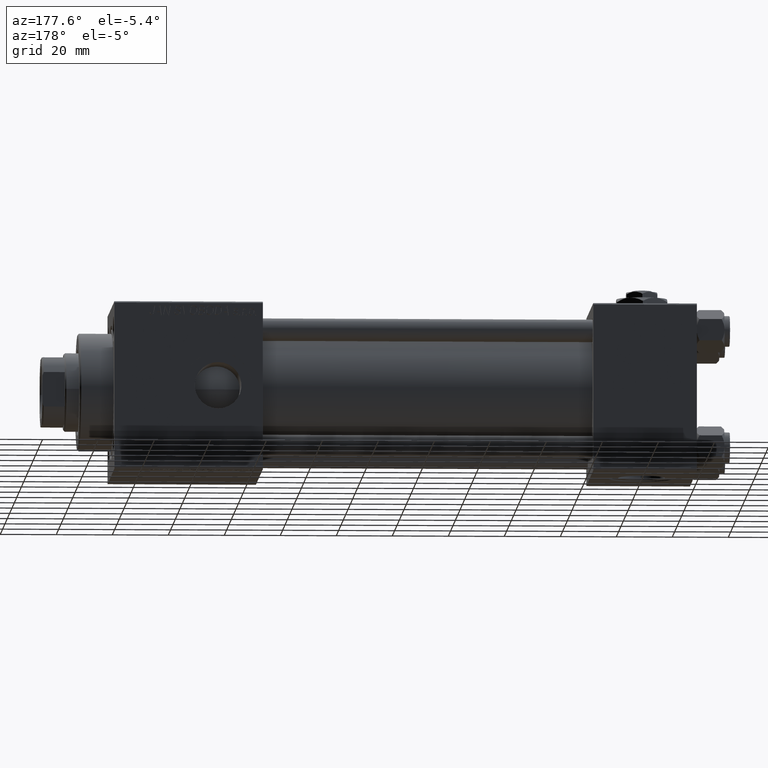
[diagram: clean part render]
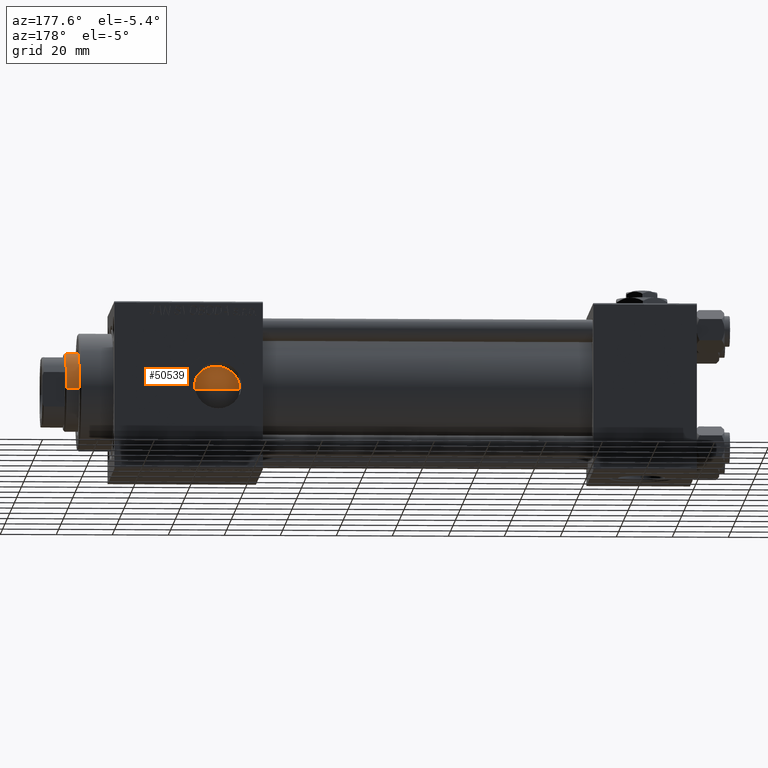
[diagram: same view with one face highlighted and labeled with its STEP entity id]
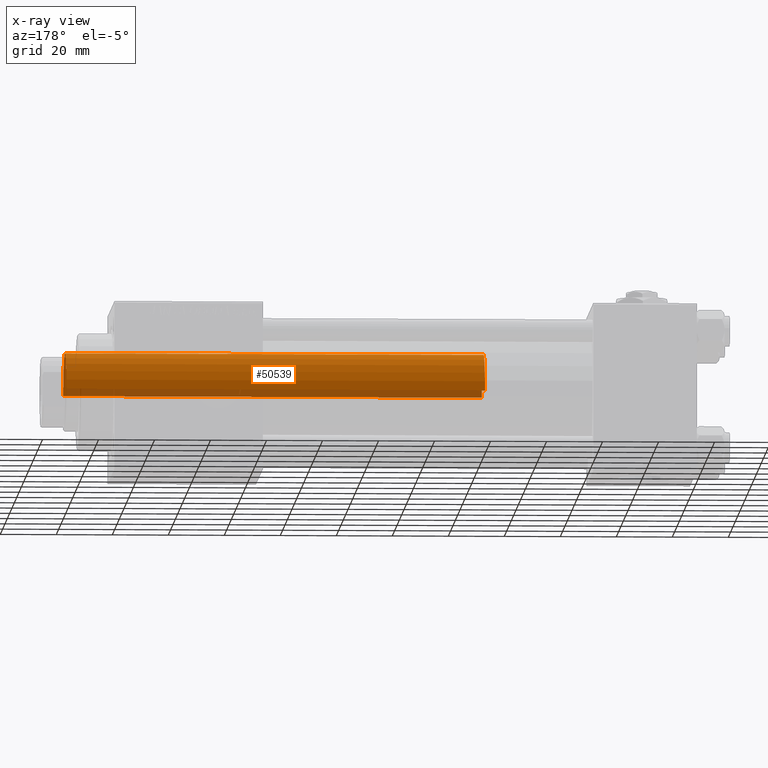
[diagram: x-ray of the same camera — body ghosted, the highlighted face saturated]
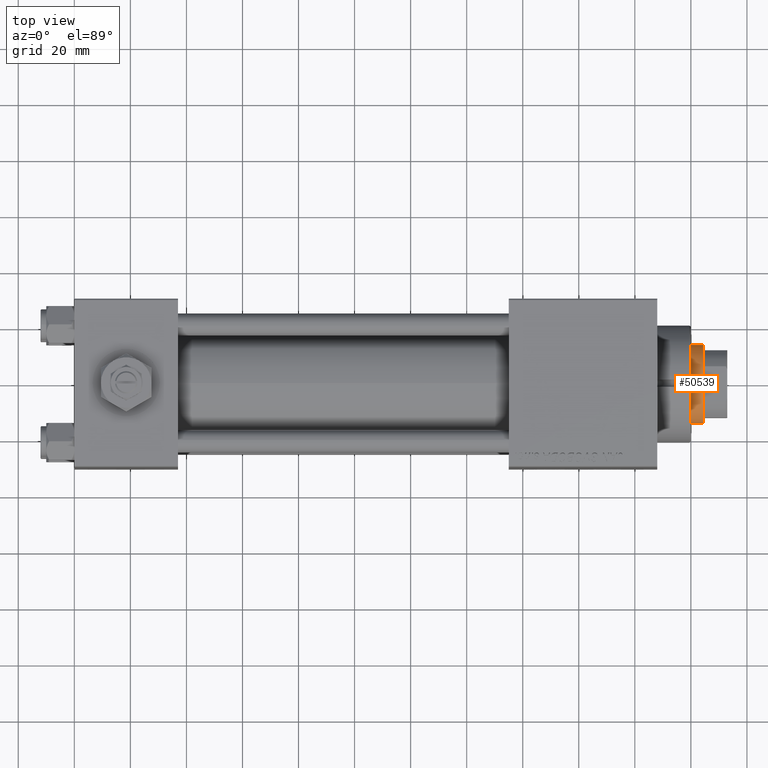
[diagram: same view with one face highlighted and labeled with its STEP entity id]
A machine part, auxiliary view. The second image highlights one B-rep face of the part: STEP entity #50539.
The next image is the same camera in x-ray: the body ghosted, the highlighted face saturated — about 17% of this face is hidden behind the body in this view.
A second angle (top view) of the same face is appended — the face is thin or edge-on in the first view.
In plain terms, the highlighted cylindrical surface (partial cylindrical patch) has radius 14 mm, axis along (-1, 0, 0).
Its self-contained STEP definition (entity closure, byte-faithful):
#3216 = CARTESIAN_POINT ( 'NONE',  ( -14.00000000000000178, 0.000000000000000000, 187.5000000000000284 ) ) ;
#3572 = DIRECTION ( 'NONE',  ( -0.000000000000000000, -0.000000000000000000, -1.000000000000000000 ) ) ;
#6692 = VERTEX_POINT ( 'NONE', #3216 ) ;
#8428 = ORIENTED_EDGE ( 'NONE', *, *, #33936, .T. ) ;
#12081 = ORIENTED_EDGE ( 'NONE', *, *, #38203, .T. ) ;
#13031 = DIRECTION ( 'NONE',  ( -1.000000000000000000, 0.000000000000000000, 0.000000000000000000 ) ) ;
#14457 = VERTEX_POINT ( 'NONE', #48976 ) ;
#15037 = AXIS2_PLACEMENT_3D ( 'NONE', #50597, #39224, #38449 ) ;
#15116 = LINE ( 'NONE', #34681, #22719 ) ;
#16008 = CARTESIAN_POINT ( 'NONE',  ( 14.00000000000000178, 1.714505518806294835E-15, 38.00000000000000000 ) ) ;
#16298 = EDGE_LOOP ( 'NONE', ( #41945, #8428, #46165, #12081 ) ) ;
#16464 = CARTESIAN_POINT ( 'NONE',  ( 0.000000000000000000, 0.000000000000000000, 188.0000000000000000 ) ) ;
#17425 = AXIS2_PLACEMENT_3D ( 'NONE', #40291, #32373, #48479 ) ;
#18010 = VERTEX_POINT ( 'NONE', #16008 ) ;
#20774 = CIRCLE ( 'NONE', #17425, 14.00000000000000178 ) ;
#21063 = VECTOR ( 'NONE', #3572, 1000.000000000000000 ) ;
#22719 = VECTOR ( 'NONE', #35466, 1000.000000000000000 ) ;
#27450 = EDGE_CURVE ( 'NONE', #6692, #14457, #51884, .T. ) ;
#28372 = FACE_OUTER_BOUND ( 'NONE', #16298, .T. ) ;
#29785 = VERTEX_POINT ( 'NONE', #48854 ) ;
#30743 = CARTESIAN_POINT ( 'NONE',  ( -14.00000000000000178, 0.000000000000000000, 188.0000000000000000 ) ) ;
#32373 = DIRECTION ( 'NONE',  ( 0.000000000000000000, 0.000000000000000000, -1.000000000000000000 ) ) ;
#33936 = EDGE_CURVE ( 'NONE', #29785, #6692, #20774, .T. ) ;
#34681 = CARTESIAN_POINT ( 'NONE',  ( 14.00000000000000178, 1.714505518806294835E-15, 188.0000000000000000 ) ) ;
#35466 = DIRECTION ( 'NONE',  ( -0.000000000000000000, -0.000000000000000000, -1.000000000000000000 ) ) ;
#36807 = CYLINDRICAL_SURFACE ( 'NONE', #41490, 14.00000000000000178 ) ;
#38203 = EDGE_CURVE ( 'NONE', #14457, #18010, #47972, .T. ) ;
#38449 = DIRECTION ( 'NONE',  ( 1.000000000000000000, 0.000000000000000000, 0.000000000000000000 ) ) ;
#39224 = DIRECTION ( 'NONE',  ( 0.000000000000000000, 0.000000000000000000, 1.000000000000000000 ) ) ;
#40258 = DIRECTION ( 'NONE',  ( -0.000000000000000000, -0.000000000000000000, -1.000000000000000000 ) ) ;
#40291 = CARTESIAN_POINT ( 'NONE',  ( 0.000000000000000000, 0.000000000000000000, 187.5000000000000284 ) ) ;
#41490 = AXIS2_PLACEMENT_3D ( 'NONE', #16464, #40258, #13031 ) ;
#41945 = ORIENTED_EDGE ( 'NONE', *, *, #44789, .F. ) ;
#44789 = EDGE_CURVE ( 'NONE', #29785, #18010, #15116, .T. ) ;
#46165 = ORIENTED_EDGE ( 'NONE', *, *, #27450, .T. ) ;
#47972 = CIRCLE ( 'NONE', #15037, 14.00000000000000178 ) ;
#48479 = DIRECTION ( 'NONE',  ( 1.000000000000000000, 0.000000000000000000, 0.000000000000000000 ) ) ;
#48854 = CARTESIAN_POINT ( 'NONE',  ( 14.00000000000000178, 1.714505518806294835E-15, 187.5000000000000284 ) ) ;
#48976 = CARTESIAN_POINT ( 'NONE',  ( -14.00000000000000178, 0.000000000000000000, 38.00000000000000000 ) ) ;
#50539 = ADVANCED_FACE ( 'NONE', ( #28372 ), #36807, .T. ) ;
#50597 = CARTESIAN_POINT ( 'NONE',  ( 0.000000000000000000, 0.000000000000000000, 38.00000000000000000 ) ) ;
#51884 = LINE ( 'NONE', #30743, #21063 ) ;